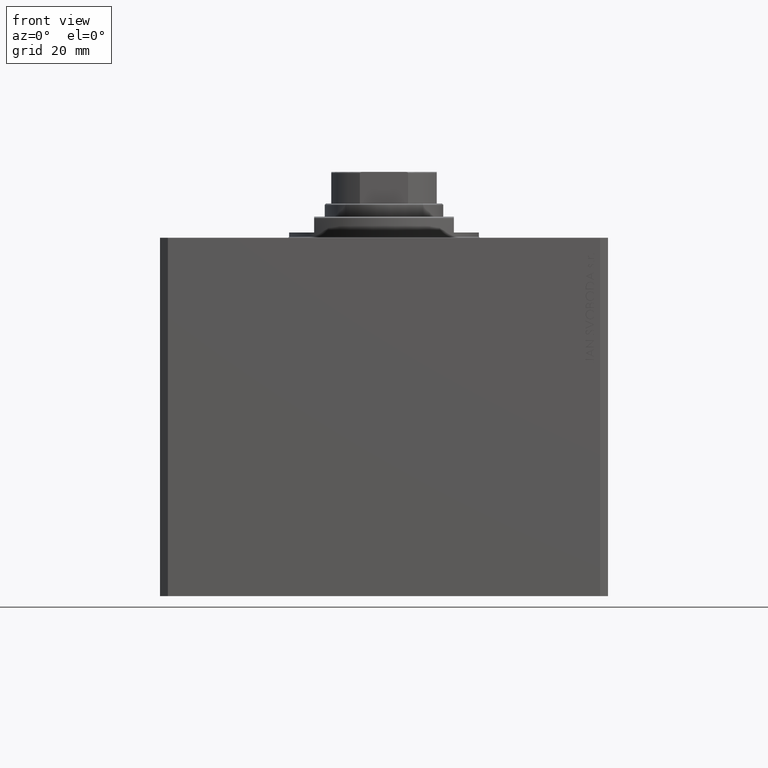
[diagram: clean part render]
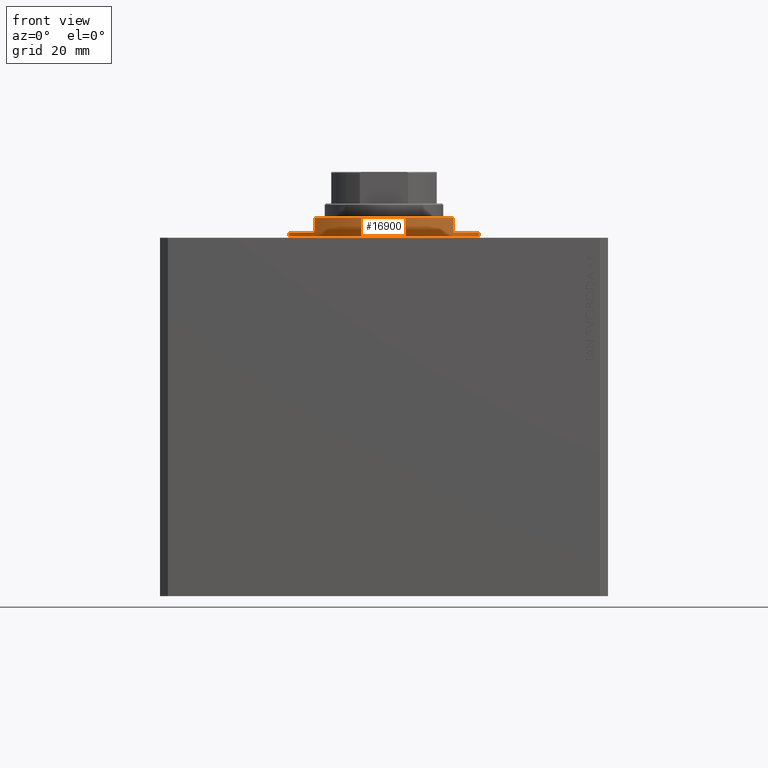
[diagram: same view with one face highlighted and labeled with its STEP entity id]
A machine part, front view. The second image highlights one B-rep face of the part: STEP entity #16900.
In plain terms, the highlighted cylindrical surface (partial cylindrical patch) has radius 36 mm, axis along (0, 0, -1).
Its self-contained STEP definition (entity closure, byte-faithful):
#849 = AXIS2_PLACEMENT_3D ( 'NONE', #44243, #33042, #29444 ) ;
#2223 = EDGE_CURVE ( 'NONE', #27565, #11154, #15137, .T. ) ;
#3629 = DIRECTION ( 'NONE',  ( -1.000000000000000000, 0.000000000000000000, 0.000000000000000000 ) ) ;
#4845 = VERTEX_POINT ( 'NONE', #18798 ) ;
#5311 = ORIENTED_EDGE ( 'NONE', *, *, #26664, .T. ) ;
#5928 = AXIS2_PLACEMENT_3D ( 'NONE', #13613, #27929, #13154 ) ;
#6055 = EDGE_CURVE ( 'NONE', #4845, #7119, #39328, .T. ) ;
#6069 = DIRECTION ( 'NONE',  ( -0.000000000000000000, -0.000000000000000000, 1.000000000000000000 ) ) ;
#6577 = ORIENTED_EDGE ( 'NONE', *, *, #6055, .F. ) ;
#7119 = VERTEX_POINT ( 'NONE', #8258 ) ;
#8123 = VECTOR ( 'NONE', #11150, 1000.000000000000000 ) ;
#8258 = CARTESIAN_POINT ( 'NONE',  ( 26.50000000000000000, -24.36698586202240691, -7.499999999999965361 ) ) ;
#9601 = CARTESIAN_POINT ( 'NONE',  ( -26.50000000000000000, -24.36698586202241046, -7.499999999999968026 ) ) ;
#9881 = EDGE_CURVE ( 'NONE', #26017, #43764, #37351, .T. ) ;
#10665 = DIRECTION ( 'NONE',  ( 0.000000000000000000, 0.000000000000000000, -1.000000000000000000 ) ) ;
#11150 = DIRECTION ( 'NONE',  ( 0.000000000000000000, 0.000000000000000000, -1.000000000000000000 ) ) ;
#11154 = VERTEX_POINT ( 'NONE', #25737 ) ;
#11270 = CARTESIAN_POINT ( 'NONE',  ( 0.000000000000000000, 0.000000000000000000, -2.000000000000000000 ) ) ;
#11597 = CARTESIAN_POINT ( 'NONE',  ( -36.00000000000000000, 4.408728476930470856E-15, -8.000000000000000000 ) ) ;
#12254 = EDGE_LOOP ( 'NONE', ( #17239, #41675, #5311, #43560, #6577, #40593, #36569, #22261 ) ) ;
#13001 = CARTESIAN_POINT ( 'NONE',  ( 0.000000000000000000, 0.000000000000000000, -8.000000000000000000 ) ) ;
#13154 = DIRECTION ( 'NONE',  ( -1.000000000000000000, 0.000000000000000000, 0.000000000000000000 ) ) ;
#13386 = CARTESIAN_POINT ( 'NONE',  ( -26.50000000000000000, -24.36698586202240691, -2.000000000000000000 ) ) ;
#13613 = CARTESIAN_POINT ( 'NONE',  ( 0.000000000000000000, 0.000000000000000000, -7.499999999999965361 ) ) ;
#13779 = DIRECTION ( 'NONE',  ( -0.000000000000000000, -0.000000000000000000, 1.000000000000000000 ) ) ;
#15137 = CIRCLE ( 'NONE', #37250, 36.00000000000000000 ) ;
#16768 = AXIS2_PLACEMENT_3D ( 'NONE', #41056, #40822, #41301 ) ;
#16900 = ADVANCED_FACE ( 'NONE', ( #42569 ), #17045, .T. ) ;
#17045 = CYLINDRICAL_SURFACE ( 'NONE', #46486, 36.00000000000000000 ) ;
#17239 = ORIENTED_EDGE ( 'NONE', *, *, #44823, .F. ) ;
#17638 = CIRCLE ( 'NONE', #849, 36.00000000000000000 ) ;
#18798 = CARTESIAN_POINT ( 'NONE',  ( 26.50000000000000000, -24.36698586202240691, -2.000000000000000000 ) ) ;
#20706 = CARTESIAN_POINT ( 'NONE',  ( 36.00000000000000000, 0.000000000000000000, -8.000000000000000000 ) ) ;
#20905 = VERTEX_POINT ( 'NONE', #9601 ) ;
#22261 = ORIENTED_EDGE ( 'NONE', *, *, #9881, .T. ) ;
#22699 = CIRCLE ( 'NONE', #5928, 36.00000000000000000 ) ;
#23989 = CARTESIAN_POINT ( 'NONE',  ( 36.00000000000000000, 0.000000000000000000, -0.5000000000000004441 ) ) ;
#25220 = LINE ( 'NONE', #11597, #25330 ) ;
#25330 = VECTOR ( 'NONE', #39796, 1000.000000000000000 ) ;
#25737 = CARTESIAN_POINT ( 'NONE',  ( -36.00000000000000000, 4.408728476930470856E-15, -2.000000000000000000 ) ) ;
#26017 = VERTEX_POINT ( 'NONE', #23989 ) ;
#26664 = EDGE_CURVE ( 'NONE', #27565, #20905, #36230, .T. ) ;
#27565 = VERTEX_POINT ( 'NONE', #13386 ) ;
#27847 = EDGE_CURVE ( 'NONE', #33417, #26017, #46463, .T. ) ;
#27929 = DIRECTION ( 'NONE',  ( 0.000000000000000000, 0.000000000000000000, 1.000000000000000000 ) ) ;
#29444 = DIRECTION ( 'NONE',  ( -1.000000000000000000, 0.000000000000000000, 0.000000000000000000 ) ) ;
#30341 = EDGE_CURVE ( 'NONE', #20905, #7119, #22699, .T. ) ;
#32012 = CARTESIAN_POINT ( 'NONE',  ( 36.00000000000000000, 0.000000000000000000, -2.000000000000000000 ) ) ;
#33042 = DIRECTION ( 'NONE',  ( 0.000000000000000000, 0.000000000000000000, -1.000000000000000000 ) ) ;
#33417 = VERTEX_POINT ( 'NONE', #32012 ) ;
#35421 = DIRECTION ( 'NONE',  ( 1.000000000000000000, 0.000000000000000000, 0.000000000000000000 ) ) ;
#36230 = LINE ( 'NONE', #47198, #8123 ) ;
#36351 = DIRECTION ( 'NONE',  ( 0.000000000000000000, 0.000000000000000000, -1.000000000000000000 ) ) ;
#36569 = ORIENTED_EDGE ( 'NONE', *, *, #27847, .T. ) ;
#37250 = AXIS2_PLACEMENT_3D ( 'NONE', #11270, #36351, #3629 ) ;
#37351 = CIRCLE ( 'NONE', #16768, 36.00000000000000000 ) ;
#39328 = LINE ( 'NONE', #43372, #42546 ) ;
#39796 = DIRECTION ( 'NONE',  ( -0.000000000000000000, -0.000000000000000000, 1.000000000000000000 ) ) ;
#40593 = ORIENTED_EDGE ( 'NONE', *, *, #41859, .F. ) ;
#40822 = DIRECTION ( 'NONE',  ( -0.000000000000000000, -0.000000000000000000, -1.000000000000000000 ) ) ;
#41056 = CARTESIAN_POINT ( 'NONE',  ( 0.000000000000000000, 0.000000000000000000, -0.5000000000000004441 ) ) ;
#41301 = DIRECTION ( 'NONE',  ( 1.000000000000000000, 0.000000000000000000, 0.000000000000000000 ) ) ;
#41675 = ORIENTED_EDGE ( 'NONE', *, *, #2223, .F. ) ;
#41720 = VECTOR ( 'NONE', #13779, 1000.000000000000000 ) ;
#41859 = EDGE_CURVE ( 'NONE', #33417, #4845, #17638, .T. ) ;
#42546 = VECTOR ( 'NONE', #10665, 1000.000000000000000 ) ;
#42569 = FACE_OUTER_BOUND ( 'NONE', #12254, .T. ) ;
#43372 = CARTESIAN_POINT ( 'NONE',  ( 26.50000000000000000, -24.36698586202240691, -8.000000000000000000 ) ) ;
#43560 = ORIENTED_EDGE ( 'NONE', *, *, #30341, .T. ) ;
#43764 = VERTEX_POINT ( 'NONE', #45689 ) ;
#44243 = CARTESIAN_POINT ( 'NONE',  ( 0.000000000000000000, 0.000000000000000000, -2.000000000000000000 ) ) ;
#44823 = EDGE_CURVE ( 'NONE', #11154, #43764, #25220, .T. ) ;
#45689 = CARTESIAN_POINT ( 'NONE',  ( -36.00000000000000000, 4.408728476930470856E-15, -0.5000000000000004441 ) ) ;
#46463 = LINE ( 'NONE', #20706, #41720 ) ;
#46486 = AXIS2_PLACEMENT_3D ( 'NONE', #13001, #6069, #35421 ) ;
#47198 = CARTESIAN_POINT ( 'NONE',  ( -26.50000000000000000, -24.36698586202240691, -8.000000000000000000 ) ) ;